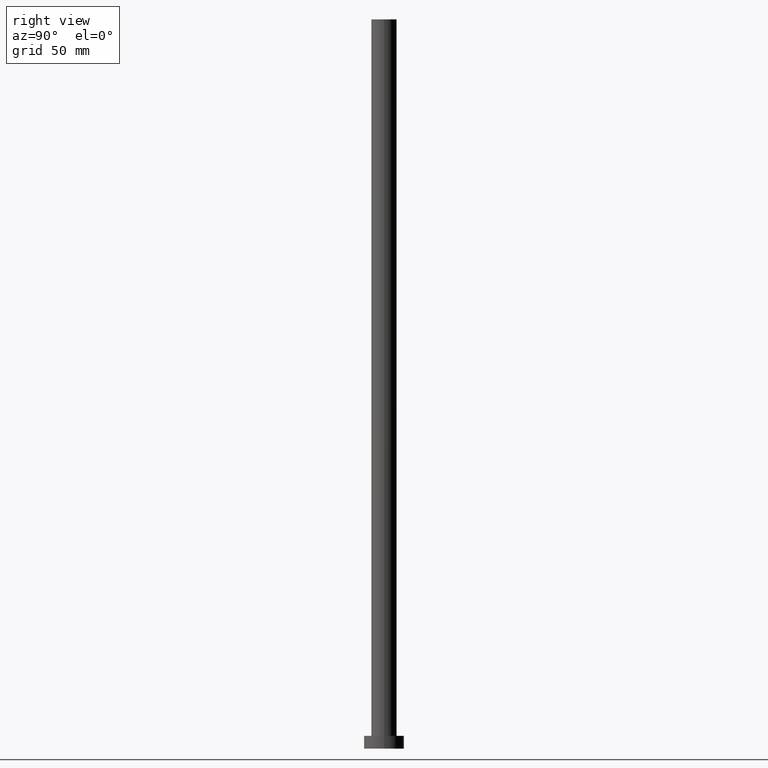
[diagram: clean part render]
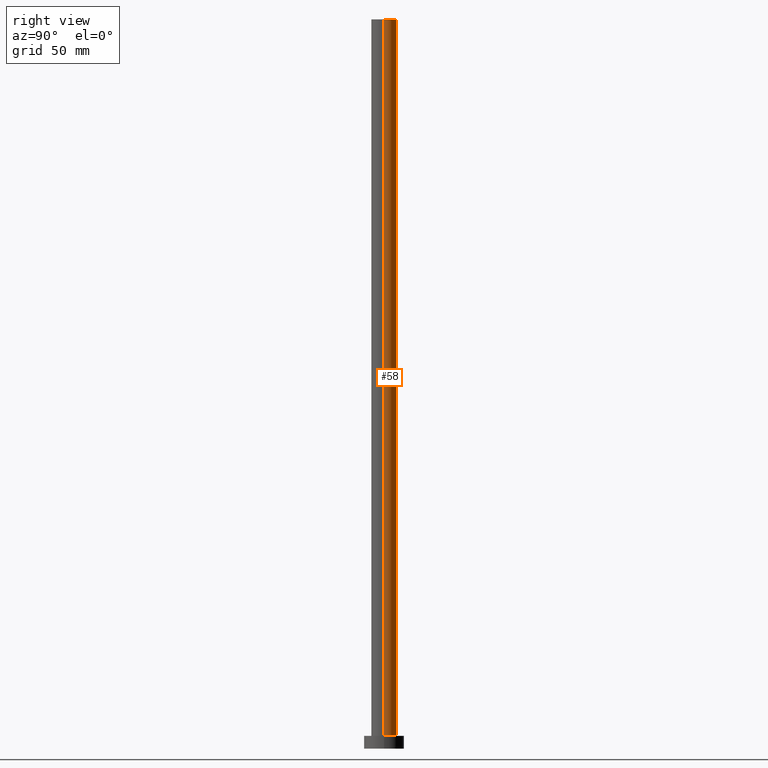
[diagram: same view with one face highlighted and labeled with its STEP entity id]
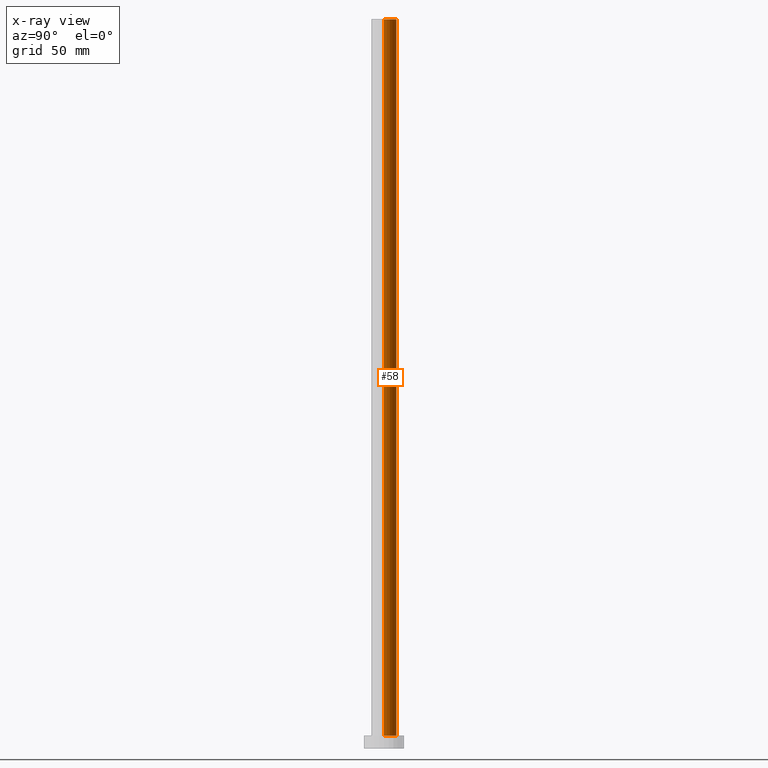
[diagram: x-ray of the same camera — body ghosted, the highlighted face saturated]
A machine part, right view. The second image highlights one B-rep face of the part: STEP entity #58.
The next image is the same camera in x-ray: the body ghosted, the highlighted face saturated — about 0% of this face is hidden behind the body in this view.
In plain terms, the highlighted cylindrical surface (edge-blend (fillet) strip) has radius 7 mm, axis along (-0, -0, -1).
Its self-contained STEP definition (entity closure, byte-faithful):
#5 = CIRCLE ( 'NONE', #248, 7.000000000000000000 ) ;
#8 = VECTOR ( 'NONE', #162, 1000.000000000000000 ) ;
#11 = ORIENTED_EDGE ( 'NONE', *, *, #77, .T. ) ;
#16 = CYLINDRICAL_SURFACE ( 'NONE', #166, 7.000000000000000000 ) ;
#19 = CARTESIAN_POINT ( 'NONE',  ( 7.000000000000000000, 8.572527594031473190E-16, 400.0000000000000000 ) ) ;
#37 = VERTEX_POINT ( 'NONE', #106 ) ;
#42 = DIRECTION ( 'NONE',  ( 1.000000000000000000, 0.000000000000000000, 0.000000000000000000 ) ) ;
#56 = CIRCLE ( 'NONE', #87, 7.000000000000000000 ) ;
#58 = ADVANCED_FACE ( 'NONE', ( #61 ), #16, .T. ) ;
#60 = CARTESIAN_POINT ( 'NONE',  ( -7.000000000000000000, 0.000000000000000000, 7.000000000000000000 ) ) ;
#61 = FACE_OUTER_BOUND ( 'NONE', #74, .T. ) ;
#73 = EDGE_CURVE ( 'NONE', #37, #169, #231, .T. ) ;
#74 = EDGE_LOOP ( 'NONE', ( #78, #193, #11, #79 ) ) ;
#77 = EDGE_CURVE ( 'NONE', #169, #101, #56, .T. ) ;
#78 = ORIENTED_EDGE ( 'NONE', *, *, #245, .F. ) ;
#79 = ORIENTED_EDGE ( 'NONE', *, *, #189, .F. ) ;
#86 = DIRECTION ( 'NONE',  ( -0.000000000000000000, -0.000000000000000000, -1.000000000000000000 ) ) ;
#87 = AXIS2_PLACEMENT_3D ( 'NONE', #161, #179, #42 ) ;
#89 = LINE ( 'NONE', #128, #8 ) ;
#91 = VECTOR ( 'NONE', #107, 1000.000000000000000 ) ;
#97 = VERTEX_POINT ( 'NONE', #232 ) ;
#101 = VERTEX_POINT ( 'NONE', #60 ) ;
#106 = CARTESIAN_POINT ( 'NONE',  ( 7.000000000000000000, 8.572527594031473190E-16, 400.0000000000000000 ) ) ;
#107 = DIRECTION ( 'NONE',  ( -0.000000000000000000, -0.000000000000000000, -1.000000000000000000 ) ) ;
#128 = CARTESIAN_POINT ( 'NONE',  ( -7.000000000000000000, 0.000000000000000000, 400.0000000000000000 ) ) ;
#131 = CARTESIAN_POINT ( 'NONE',  ( 0.000000000000000000, 0.000000000000000000, 400.0000000000000000 ) ) ;
#147 = CARTESIAN_POINT ( 'NONE',  ( 7.000000000000000000, 8.572527594031473190E-16, 7.000000000000000000 ) ) ;
#161 = CARTESIAN_POINT ( 'NONE',  ( 0.000000000000000000, 0.000000000000000000, 7.000000000000000000 ) ) ;
#162 = DIRECTION ( 'NONE',  ( -0.000000000000000000, -0.000000000000000000, -1.000000000000000000 ) ) ;
#166 = AXIS2_PLACEMENT_3D ( 'NONE', #197, #86, #235 ) ;
#169 = VERTEX_POINT ( 'NONE', #147 ) ;
#179 = DIRECTION ( 'NONE',  ( 0.000000000000000000, 0.000000000000000000, 1.000000000000000000 ) ) ;
#189 = EDGE_CURVE ( 'NONE', #97, #101, #89, .T. ) ;
#193 = ORIENTED_EDGE ( 'NONE', *, *, #73, .T. ) ;
#197 = CARTESIAN_POINT ( 'NONE',  ( 0.000000000000000000, 0.000000000000000000, 400.0000000000000000 ) ) ;
#202 = DIRECTION ( 'NONE',  ( 0.000000000000000000, 0.000000000000000000, 1.000000000000000000 ) ) ;
#223 = DIRECTION ( 'NONE',  ( 1.000000000000000000, 0.000000000000000000, 0.000000000000000000 ) ) ;
#231 = LINE ( 'NONE', #19, #91 ) ;
#232 = CARTESIAN_POINT ( 'NONE',  ( -7.000000000000000000, 0.000000000000000000, 400.0000000000000000 ) ) ;
#235 = DIRECTION ( 'NONE',  ( -1.000000000000000000, 0.000000000000000000, 0.000000000000000000 ) ) ;
#245 = EDGE_CURVE ( 'NONE', #37, #97, #5, .T. ) ;
#248 = AXIS2_PLACEMENT_3D ( 'NONE', #131, #202, #223 ) ;